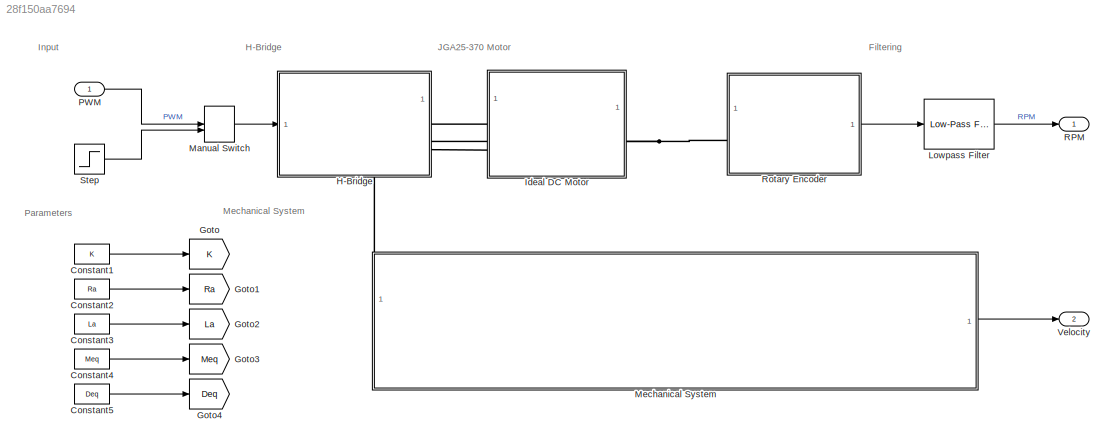
MODEL slx_28f150aa7694
KIND model
CONFIG AbsTol = auto
CONFIG EnableMultiTasking = off
CONFIG FixedStep = Ts
CONFIG MaxStep = auto
CONFIG MinStep = auto
CONFIG RelTol = 1e-3
CONFIG SampleTimeConstraint = Unconstrained
CONFIG SolverName = FixedStepAuto
CONFIG StartTime = 0.0
CONFIG StopTime = 20
BLOCK [Constant] Constant1
  Value = K
BLOCK [Constant] Constant2
  Value = Ra
BLOCK [Constant] Constant3
  Value = La
BLOCK [Constant] Constant4
  Value = Meq
BLOCK [Constant] Constant5
  Value = Deq
BLOCK [Goto] Goto
  GotoTag = K
  TagVisibility = global
BLOCK [Goto] Goto1
  GotoTag = Ra
  TagVisibility = global
BLOCK [Goto] Goto2
  GotoTag = La
  TagVisibility = global
BLOCK [Goto] Goto3
  GotoTag = Meq
  TagVisibility = global
BLOCK [Goto] Goto4
  GotoTag = Deq
  TagVisibility = global
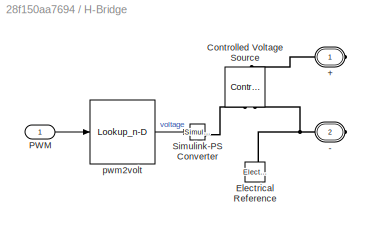
BLOCK [SubSystem] H-Bridge
BLOCK [PMIOPort] H-Bridge/+
  Side = Right
BLOCK [PMIOPort] H-Bridge/-
  Port = 2
  Side = Right
BLOCK [Reference] H-Bridge/Controlled Voltage Source  REF=fl_lib/Electrical/Electrical Sources/Controlled Voltage
Source
  NameLocation = right
  SourceBlock = fl_lib/Electrical/Electrical Sources/Controlled Voltage\nSource
  SourceType = Controlled Voltage\nSource
BLOCK [Reference] H-Bridge/Electrical Reference  REF=fl_lib/Electrical/Electrical Elements/Electrical Reference
  NameLocation = right
  SourceBlock = fl_lib/Electrical/Electrical Elements/Electrical Reference
  SourceType = Electrical Reference
BLOCK [Inport] H-Bridge/PWM
BLOCK [Reference] H-Bridge/Simulink-PS Converter  REF=nesl_utility/Simulink-PS
Converter
  SourceBlock = nesl_utility/Simulink-PS\nConverter
  SourceType = Simulink-PS\nConverter
BLOCK [Lookup_n-D] H-Bridge/pwm2volt
  BreakpointsForDimension1 = [0 5 10 15 20 25 30 35 40 45 50 55 60 65 70 75 80 85 90 95 100 105 110 115 120 125 130 135 140 145 150 155 160 165 170 175 180 185 190 195 200 205 210 215 220 225 230 235 240 245 250 255]
  InputPortMap = u0
  InternalRulePriority = Speed
  NumberOfTableDimensions = 1
  RndMeth = Simplest
  Table = [0;0;0;0;0;0;0;0;2.5;3.08;3.77;4.54;5.08;5.55;6.05;6.5;6.97;7.23;7.51;7.72;7.9;8.09;8.28;8.4;8.56;8.65;8.87;9.07;9.27;9.33;9.45;9.51;9.59;9.66;9.74;9.82;9.89;9.91;9.96;10.04;10.08;10.11;10.14;10.2;10.26;10.31;10.37;10.43;10.47;10.47;10.52;10.74]
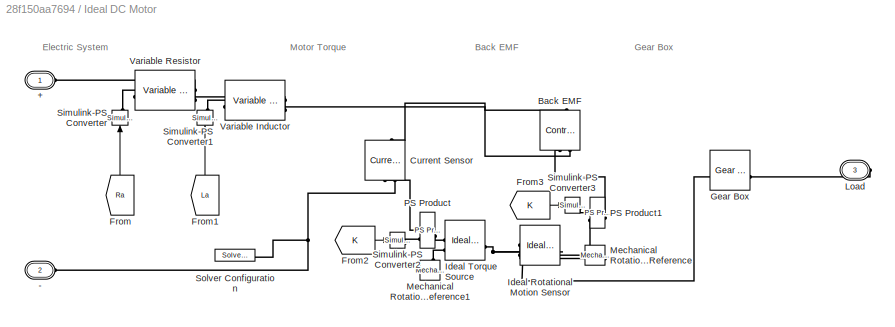
BLOCK [SubSystem] Ideal DC Motor
BLOCK [PMIOPort] Ideal DC Motor/+
  Side = Left
  Tag = PMCPort
BLOCK [PMIOPort] Ideal DC Motor/-
  Port = 2
  Side = Left
  Tag = PMCPort
BLOCK [Reference] Ideal DC Motor/Back EMF  REF=fl_lib/Electrical/Electrical Sources/Controlled Voltage
Source
  NameLocation = right
  SourceBlock = fl_lib/Electrical/Electrical Sources/Controlled Voltage\nSource
  SourceType = Controlled Voltage\nSource
BLOCK [Reference] Ideal DC Motor/Current Sensor  REF=fl_lib/Electrical/Electrical Sensors/Current Sensor
  NameLocation = right
  SourceBlock = fl_lib/Electrical/Electrical Sensors/Current Sensor
  SourceType = Current Sensor
BLOCK [From] Ideal DC Motor/From
  GotoTag = Ra
  NameLocation = left
  TagVisibility = global
BLOCK [From] Ideal DC Motor/From1
  GotoTag = La
  NameLocation = left
  TagVisibility = global
BLOCK [From] Ideal DC Motor/From2
  GotoTag = K
  TagVisibility = global
BLOCK [From] Ideal DC Motor/From3
  GotoTag = K
  TagVisibility = global
BLOCK [Reference] Ideal DC Motor/Gear Box  REF=fl_lib/Mechanical/Mechanisms/Gear Box
  SourceBlock = fl_lib/Mechanical/Mechanisms/Gear Box
  SourceType = Gear Box
BLOCK [Reference] Ideal DC Motor/Ideal Rotational Motion Sensor  REF=fl_lib/Mechanical/Mechanical Sensors/Ideal Rotational
Motion Sensor
  SourceBlock = fl_lib/Mechanical/Mechanical Sensors/Ideal Rotational\nMotion Sensor
  SourceType = Ideal Rotational\nMotion Sensor
BLOCK [Reference] Ideal DC Motor/Ideal Torque Source  REF=fl_lib/Mechanical/Mechanical Sources/Ideal Torque Source
  SourceBlock = fl_lib/Mechanical/Mechanical Sources/Ideal Torque Source
  SourceType = Ideal Torque Source
BLOCK [PMIOPort] Ideal DC Motor/Load
  Port = 3
  Side = Right
BLOCK [Reference] Ideal DC Motor/Mechanical Rotational Reference  REF=fl_lib/Mechanical/Rotational Elements/Mechanical
Rotational Reference
  NameLocation = top
  SourceBlock = fl_lib/Mechanical/Rotational Elements/Mechanical\nRotational Reference
  SourceType = Mechanical\nRotational Reference
BLOCK [Reference] Ideal DC Motor/Mechanical Rotational Reference1  REF=fl_lib/Mechanical/Rotational Elements/Mechanical
Rotational Reference
  NameLocation = right
  SourceBlock = fl_lib/Mechanical/Rotational Elements/Mechanical\nRotational Reference
  SourceType = Mechanical\nRotational Reference
BLOCK [Reference] Ideal DC Motor/PS Product  REF=fl_lib/Physical Signals/Functions/PS Product
  SourceBlock = fl_lib/Physical Signals/Functions/PS Product
  SourceType = PS Product
BLOCK [Reference] Ideal DC Motor/PS Product1  REF=fl_lib/Physical Signals/Functions/PS Product
  SourceBlock = fl_lib/Physical Signals/Functions/PS Product
  SourceType = PS Product
BLOCK [Reference] Ideal DC Motor/Simulink-PS Converter  REF=nesl_utility/Simulink-PS
Converter
  NameLocation = left
  SourceBlock = nesl_utility/Simulink-PS\nConverter
  SourceType = Simulink-PS\nConverter
BLOCK [Reference] Ideal DC Motor/Simulink-PS Converter1  REF=nesl_utility/Simulink-PS
Converter
  NameLocation = left
  SourceBlock = nesl_utility/Simulink-PS\nConverter
  SourceType = Simulink-PS\nConverter
BLOCK [Reference] Ideal DC Motor/Simulink-PS Converter2  REF=nesl_utility/Simulink-PS
Converter
  SourceBlock = nesl_utility/Simulink-PS\nConverter
  SourceType = Simulink-PS\nConverter
BLOCK [Reference] Ideal DC Motor/Simulink-PS Converter3  REF=nesl_utility/Simulink-PS
Converter
  SourceBlock = nesl_utility/Simulink-PS\nConverter
  SourceType = Simulink-PS\nConverter
BLOCK [Reference] Ideal DC Motor/Solver Configuration  REF=nesl_utility/Solver
Configuration
  SourceBlock = nesl_utility/Solver\nConfiguration
  SourceType = Solver\nConfiguration
BLOCK [Reference] Ideal DC Motor/Variable Inductor  REF=ee_lib/Passive/Variable Inductor
  SourceBlock = ee_lib/Passive/Variable Inductor
  SourceType = Variable Inductor
BLOCK [Reference] Ideal DC Motor/Variable Resistor  REF=fl_lib/Electrical/Electrical Elements/Variable Resistor
  SourceBlock = fl_lib/Electrical/Electrical Elements/Variable Resistor
  SourceType = Variable Resistor
BLOCK [Reference] Lowpass Filter  REF=eeGeneralControl/Low-Pass Filter
(Discrete or Continuous)
  Commented = through
  LibrarySourceBlock = ee_sl_lib/General Control/Low-Pass Filter\n(Discrete or Continuous)
  SourceBlock = eeGeneralControl/Low-Pass Filter\n(Discrete or Continuous)
  SourceType = Low-Pass Filter (Discrete or Continuous)
BLOCK [ManualSwitch] Manual Switch
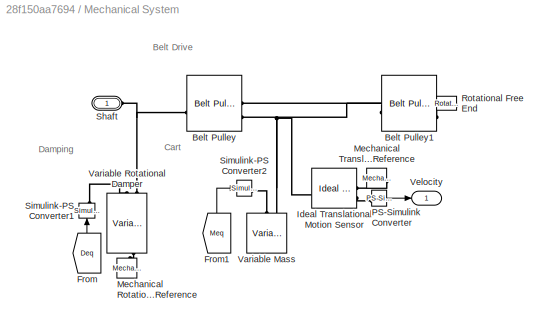
BLOCK [SubSystem] Mechanical System
  PortSchema = {"entries":[{"content":{"sides":[{"content":{},"type":"ConnectorPlacement.EquallySpacedRectSide","uuid":"35af7967-d601-467b-871c-2decdb5f576d"},{"content":{"connectorIds":["Out1"],"side":"RIGHT"},"type":"ConnectorPlacement.EquallySpacedRectSide","uuid":"f82d529b-61c3-41a9-ad40-44f1ee2700d7"},{"content":{"connectorIds":["LConn1"],"side":"TOP"},"type":"ConnectorPlacement.EquallySpacedRectSide","uuid...<+226ch>
BLOCK [Reference] Mechanical System/Belt Pulley  REF=sdl_lib/Couplings & Drives/Belt Pulley
  SourceBlock = sdl_lib/Couplings & Drives/Belt Pulley
  SourceType = Belt Pulley
BLOCK [Reference] Mechanical System/Belt Pulley1  REF=sdl_lib/Couplings & Drives/Belt Pulley
  NameLocation = top
  SourceBlock = sdl_lib/Couplings & Drives/Belt Pulley
  SourceType = Belt Pulley
BLOCK [From] Mechanical System/From
  GotoTag = Deq
  NameLocation = right
  TagVisibility = global
BLOCK [From] Mechanical System/From1
  GotoTag = Meq
  NameLocation = right
  TagVisibility = global
BLOCK [Reference] Mechanical System/Ideal Translational Motion Sensor  REF=fl_lib/Mechanical/Mechanical Sensors/Ideal Translational
Motion Sensor
  SourceBlock = fl_lib/Mechanical/Mechanical Sensors/Ideal Translational\nMotion Sensor
  SourceType = Ideal Translational\nMotion Sensor
BLOCK [Reference] Mechanical System/Mechanical Rotational Reference  REF=fl_lib/Mechanical/Rotational Elements/Mechanical
Rotational Reference
  NameLocation = right
  SourceBlock = fl_lib/Mechanical/Rotational Elements/Mechanical\nRotational Reference
  SourceType = Mechanical\nRotational Reference
BLOCK [Reference] Mechanical System/Mechanical Translational Reference  REF=fl_lib/Mechanical/Translational
Elements/Mechanical
Translational
Reference
  NameLocation = top
  SourceBlock = fl_lib/Mechanical/Translational\nElements/Mechanical\nTranslational\nReference
  SourceType = Mechanical\nTranslational\nReference
BLOCK [Reference] Mechanical System/PS-Simulink Converter  REF=nesl_utility/PS-Simulink
Converter
  SourceBlock = nesl_utility/PS-Simulink\nConverter
  SourceType = PS-Simulink\nConverter
BLOCK [Reference] Mechanical System/Rotational Free End  REF=fl_lib/Mechanical/Rotational Elements/Rotational Free End
  NameLocation = top
  SourceBlock = fl_lib/Mechanical/Rotational Elements/Rotational Free End
  SourceType = Rotational Free End
BLOCK [PMIOPort] Mechanical System/Shaft
  Side = Left
BLOCK [Reference] Mechanical System/Simulink-PS Converter1  REF=nesl_utility/Simulink-PS
Converter
  NameLocation = right
  SourceBlock = nesl_utility/Simulink-PS\nConverter
  SourceType = Simulink-PS\nConverter
BLOCK [Reference] Mechanical System/Simulink-PS Converter2  REF=nesl_utility/Simulink-PS
Converter
  SourceBlock = nesl_utility/Simulink-PS\nConverter
  SourceType = Simulink-PS\nConverter
BLOCK [Reference] Mechanical System/Variable Mass  REF=sdl_lib/Inertias & Loads/Variable Mass
  NameLocation = right
  SourceBlock = sdl_lib/Inertias & Loads/Variable Mass
  SourceType = Variable Mass
BLOCK [Reference] Mechanical System/Variable Rotational Damper  REF=sdl_lib/Couplings & Drives/Springs & Dampers/Variable Rotational
Damper
  NameLocation = left
  SourceBlock = sdl_lib/Couplings & Drives/Springs & Dampers/Variable Rotational\nDamper
  SourceType = Variable Rotational\nDamper
BLOCK [Outport] Mechanical System/Velocity
BLOCK [Inport] PWM
BLOCK [Outport] RPM
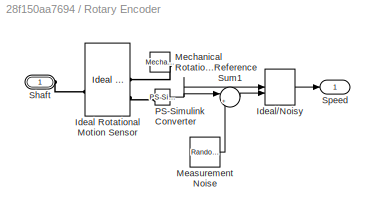
BLOCK [SubSystem] Rotary Encoder
BLOCK [Reference] Rotary Encoder/Ideal Rotational Motion Sensor  REF=fl_lib/Mechanical/Mechanical Sensors/Ideal Rotational
Motion Sensor
  SourceBlock = fl_lib/Mechanical/Mechanical Sensors/Ideal Rotational\nMotion Sensor
  SourceType = Ideal Rotational\nMotion Sensor
BLOCK [ManualSwitch] Rotary Encoder/Ideal//Noisy
  CurrentSetting = 0
BLOCK [RandomNumber] Rotary Encoder/Measurement Noise
  SampleTime = Ts
  Variance = 0.1
BLOCK [Reference] Rotary Encoder/Mechanical Rotational Reference  REF=fl_lib/Mechanical/Rotational Elements/Mechanical
Rotational Reference
  NameLocation = top
  SourceBlock = fl_lib/Mechanical/Rotational Elements/Mechanical\nRotational Reference
  SourceType = Mechanical\nRotational Reference
BLOCK [Reference] Rotary Encoder/PS-Simulink Converter  REF=nesl_utility/PS-Simulink
Converter
  SourceBlock = nesl_utility/PS-Simulink\nConverter
  SourceType = PS-Simulink\nConverter
BLOCK [PMIOPort] Rotary Encoder/Shaft
  Side = Left
BLOCK [Outport] Rotary Encoder/Speed
BLOCK [Sum] Rotary Encoder/Sum1
  Inputs = |++
BLOCK [Step] Step
  After = 12
  SampleTime = 0
  Time = 5
BLOCK [Outport] Velocity
  Port = 2
ANNOTATION (root): Filtering
ANNOTATION (root): H-Bridge
ANNOTATION (root): Input
ANNOTATION (root): JGA25-370 Motor
ANNOTATION (root): Mechanical System
ANNOTATION (root): Parameters
ANNOTATION Ideal DC Motor: Back EMF
ANNOTATION Ideal DC Motor: Electric System
ANNOTATION Ideal DC Motor: Gear Box
ANNOTATION Ideal DC Motor: Motor Torque
ANNOTATION Mechanical System: Belt Drive
ANNOTATION Mechanical System: Cart
ANNOTATION Mechanical System: Damping
LINE Constant1:1 -> Goto:1
LINE Constant2:1 -> Goto1:1
LINE Constant3:1 -> Goto2:1
LINE Constant4:1 -> Goto3:1
LINE Constant5:1 -> Goto4:1
LINE H-Bridge/PWM:1 -> H-Bridge/pwm2volt:1
LINE H-Bridge/pwm2volt:1 -> H-Bridge/Simulink-PS Converter:1
LINE Ideal DC Motor/From1:1 -> Ideal DC Motor/Simulink-PS Converter1:1
LINE Ideal DC Motor/From2:1 -> Ideal DC Motor/Simulink-PS Converter2:1
LINE Ideal DC Motor/From3:1 -> Ideal DC Motor/Simulink-PS Converter3:1
LINE Ideal DC Motor/From:1 -> Ideal DC Motor/Simulink-PS Converter:1
LINE Lowpass Filter:1 -> RPM:1
LINE Manual Switch:1 -> H-Bridge:1
LINE Mechanical System/From1:1 -> Mechanical System/Simulink-PS Converter2:1
LINE Mechanical System/From:1 -> Mechanical System/Simulink-PS Converter1:1
LINE Mechanical System/PS-Simulink Converter:1 -> Mechanical System/Velocity:1
LINE Mechanical System:1 -> Velocity:1
LINE PWM:1 -> Manual Switch:1
LINE Rotary Encoder/Ideal//Noisy:1 -> Rotary Encoder/Speed:1
LINE Rotary Encoder/Measurement Noise:1 -> Rotary Encoder/Sum1:2
NET Rotary Encoder/PS-Simulink Converter:1 -> Rotary Encoder/Ideal//Noisy:1, Rotary Encoder/Sum1:1
LINE Rotary Encoder/Sum1:1 -> Rotary Encoder/Ideal//Noisy:2
LINE Rotary Encoder:1 -> Lowpass Filter:1
LINE Step:1 -> Manual Switch:2
PLINE H-Bridge/+:RConn1 -- H-Bridge/Controlled Voltage Source:LConn1
PNET net1: H-Bridge/-:RConn1 -- H-Bridge/Controlled Voltage Source:RConn2 -- H-Bridge/Electrical Reference:LConn1
PLINE H-Bridge/Controlled Voltage Source:RConn1 -- H-Bridge/Simulink-PS Converter:RConn1
PLINE H-Bridge:RConn1 -- Ideal DC Motor:LConn1
PLINE H-Bridge:RConn2 -- Ideal DC Motor:LConn2
PLINE Ideal DC Motor/+:RConn1 -- Ideal DC Motor/Variable Resistor:LConn2
PNET net2: Ideal DC Motor/-:RConn1 -- Ideal DC Motor/Current Sensor:RConn2 -- Ideal DC Motor/Solver Configuration:RConn1
PLINE Ideal DC Motor/Back EMF:LConn1 -- Ideal DC Motor/Variable Inductor:RConn1
PLINE Ideal DC Motor/Back EMF:RConn1 -- Ideal DC Motor/PS Product1:RConn1
PLINE Ideal DC Motor/Back EMF:RConn2 -- Ideal DC Motor/Current Sensor:LConn1
PLINE Ideal DC Motor/Current Sensor:RConn1 -- Ideal DC Motor/PS Product:LConn1
PNET net3: Ideal DC Motor/Gear Box:LConn1 -- Ideal DC Motor/Ideal Rotational Motion Sensor:LConn1 -- Ideal DC Motor/Ideal Torque Source:LConn1
PLINE Ideal DC Motor/Gear Box:RConn1 -- Ideal DC Motor/Load:RConn1
PLINE Ideal DC Motor/Ideal Rotational Motion Sensor:RConn1 -- Ideal DC Motor/Mechanical Rotational Reference:LConn1
PLINE Ideal DC Motor/Ideal Rotational Motion Sensor:RConn2 -- Ideal DC Motor/PS Product1:LConn2
PLINE Ideal DC Motor/Ideal Torque Source:RConn1 -- Ideal DC Motor/PS Product:RConn1
PLINE Ideal DC Motor/Ideal Torque Source:RConn2 -- Ideal DC Motor/Mechanical Rotational Reference1:LConn1
PLINE Ideal DC Motor/PS Product1:LConn1 -- Ideal DC Motor/Simulink-PS Converter3:RConn1
PLINE Ideal DC Motor/PS Product:LConn2 -- Ideal DC Motor/Simulink-PS Converter2:RConn1
PLINE Ideal DC Motor/Simulink-PS Converter1:RConn1 -- Ideal DC Motor/Variable Inductor:LConn1
PLINE Ideal DC Motor/Simulink-PS Converter:RConn1 -- Ideal DC Motor/Variable Resistor:LConn1
PLINE Ideal DC Motor/Variable Inductor:LConn2 -- Ideal DC Motor/Variable Resistor:RConn1
PNET net4: Ideal DC Motor:RConn1 -- Mechanical System:LConn1 -- Rotary Encoder:LConn1
PLINE Mechanical System/Belt Pulley1:LConn1 -- Mechanical System/Rotational Free End:LConn1
PNET net5: Mechanical System/Belt Pulley1:RConn1 -- Mechanical System/Belt Pulley:RConn2 -- Mechanical System/Ideal Translational Motion Sensor:LConn1 -- Mechanical System/Variable Mass:LConn2
PLINE Mechanical System/Belt Pulley1:RConn2 -- Mechanical System/Belt Pulley:RConn1
PNET net6: Mechanical System/Belt Pulley:LConn1 -- Mechanical System/Shaft:RConn1 -- Mechanical System/Variable Rotational Damper:LConn2
PLINE Mechanical System/Ideal Translational Motion Sensor:RConn1 -- Mechanical System/Mechanical Translational Reference:LConn1
PLINE Mechanical System/Ideal Translational Motion Sensor:RConn2 -- Mechanical System/PS-Simulink Converter:LConn1
PLINE Mechanical System/Mechanical Rotational Reference:LConn1 -- Mechanical System/Variable Rotational Damper:RConn1
PLINE Mechanical System/Simulink-PS Converter1:RConn1 -- Mechanical System/Variable Rotational Damper:LConn1
PLINE Mechanical System/Simulink-PS Converter2:RConn1 -- Mechanical System/Variable Mass:LConn1
PLINE Rotary Encoder/Ideal Rotational Motion Sensor:LConn1 -- Rotary Encoder/Shaft:RConn1
PLINE Rotary Encoder/Ideal Rotational Motion Sensor:RConn1 -- Rotary Encoder/Mechanical Rotational Reference:LConn1
PLINE Rotary Encoder/Ideal Rotational Motion Sensor:RConn2 -- Rotary Encoder/PS-Simulink Converter:LConn1
note: NET lines group one-source signal fan-out (src -> all destinations, sorted); 1:1 wires keep LINE; PNET lines group multi-terminal physical nets as a canonical sorted terminal list (undirected conserving connections); 2-terminal nets keep the pairwise PLINE form
